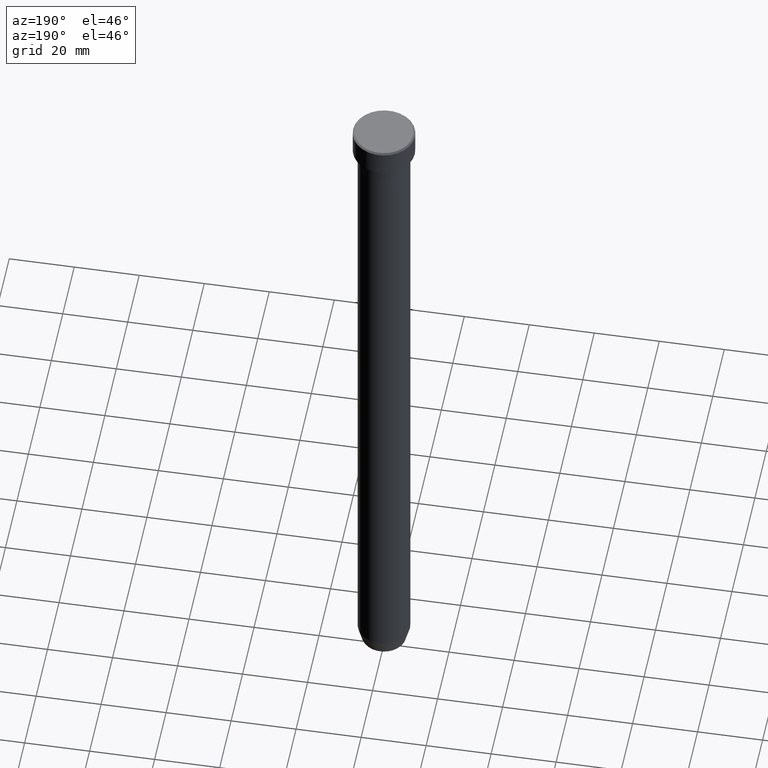
[diagram: clean part render]
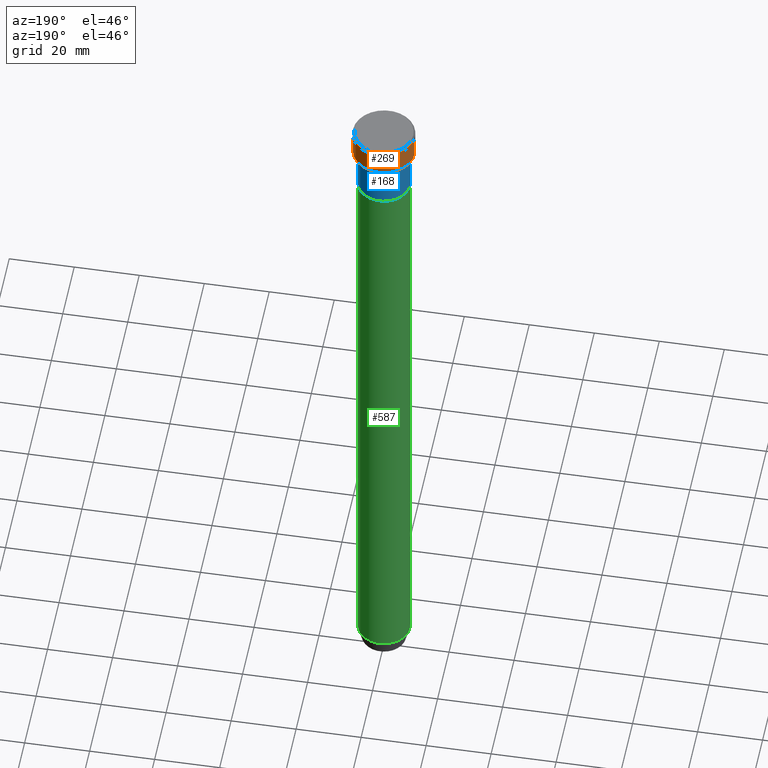
[diagram: same view with three faces highlighted in distinct colors, each labeled with its STEP entity id]
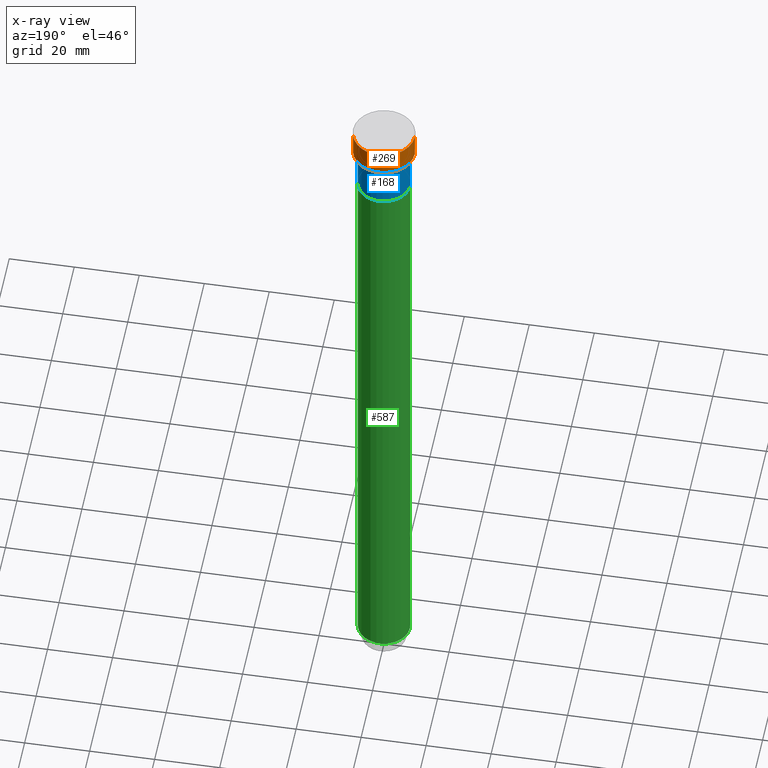
[diagram: x-ray of the same camera — body ghosted, the three highlighted faces saturated]
A machine part, auxiliary view with three faces highlighted in distinct colors.
The next image is the same camera in x-ray (body ghosted, the three faces saturated) — at least one of them is partly hidden behind the body in this view.
Their STEP definitions:

[orange] entity #269 — the highlighted cylindrical surface (edge-blend (fillet) strip) has radius 9.5 mm, axis along (-0, -0, 1).
#5 = DIRECTION ( 'NONE',  ( -0.000000000000000000, -0.000000000000000000, 1.000000000000000000 ) ) ;
#13 = CARTESIAN_POINT ( 'NONE',  ( -9.500000000000000000, 1.163414459189985485E-15, -0.4999999999999968914 ) ) ;
#16 = LINE ( 'NONE', #152, #151 ) ;
#41 = CIRCLE ( 'NONE', #413, 9.500000000000000000 ) ;
#46 = CARTESIAN_POINT ( 'NONE',  ( 9.500000000000000000, 0.000000000000000000, -8.000000000000000000 ) ) ;
#51 = DIRECTION ( 'NONE',  ( 1.000000000000000000, 0.000000000000000000, 0.000000000000000000 ) ) ;
#59 = CARTESIAN_POINT ( 'NONE',  ( 0.000000000000000000, 0.000000000000000000, -8.000000000000000000 ) ) ;
#71 = AXIS2_PLACEMENT_3D ( 'NONE', #380, #5, #51 ) ;
#78 = VERTEX_POINT ( 'NONE', #89 ) ;
#89 = CARTESIAN_POINT ( 'NONE',  ( 9.500000000000000000, 0.000000000000000000, -0.4999999999999968914 ) ) ;
#115 = CARTESIAN_POINT ( 'NONE',  ( -9.500000000000000000, 1.163414459189985485E-15, -8.000000000000000000 ) ) ;
#129 = ORIENTED_EDGE ( 'NONE', *, *, #198, .T. ) ;
#151 = VECTOR ( 'NONE', #520, 1000.000000000000000 ) ;
#152 = CARTESIAN_POINT ( 'NONE',  ( 9.500000000000000000, 0.000000000000000000, 0.000000000000000000 ) ) ;
#163 = ORIENTED_EDGE ( 'NONE', *, *, #521, .T. ) ;
#198 = EDGE_CURVE ( 'NONE', #543, #78, #41, .T. ) ;
#235 = CARTESIAN_POINT ( 'NONE',  ( 0.000000000000000000, 0.000000000000000000, -0.4999999999999968914 ) ) ;
#253 = LINE ( 'NONE', #289, #555 ) ;
#260 = DIRECTION ( 'NONE',  ( -0.000000000000000000, -0.000000000000000000, 1.000000000000000000 ) ) ;
#269 = ADVANCED_FACE ( 'NONE', ( #286 ), #376, .T. ) ;
#273 = DIRECTION ( 'NONE',  ( 0.000000000000000000, 0.000000000000000000, -1.000000000000000000 ) ) ;
#286 = FACE_OUTER_BOUND ( 'NONE', #309, .T. ) ;
#289 = CARTESIAN_POINT ( 'NONE',  ( -9.500000000000000000, 1.163414459189985485E-15, 0.000000000000000000 ) ) ;
#294 = AXIS2_PLACEMENT_3D ( 'NONE', #59, #260, #306 ) ;
#306 = DIRECTION ( 'NONE',  ( 1.000000000000000000, 0.000000000000000000, 0.000000000000000000 ) ) ;
#307 = EDGE_CURVE ( 'NONE', #582, #543, #253, .T. ) ;
#309 = EDGE_LOOP ( 'NONE', ( #163, #575, #129, #385 ) ) ;
#315 = VERTEX_POINT ( 'NONE', #46 ) ;
#376 = CYLINDRICAL_SURFACE ( 'NONE', #71, 9.500000000000000000 ) ;
#380 = CARTESIAN_POINT ( 'NONE',  ( 0.000000000000000000, 0.000000000000000000, 0.000000000000000000 ) ) ;
#385 = ORIENTED_EDGE ( 'NONE', *, *, #506, .F. ) ;
#413 = AXIS2_PLACEMENT_3D ( 'NONE', #235, #273, #455 ) ;
#455 = DIRECTION ( 'NONE',  ( 1.000000000000000000, 0.000000000000000000, 0.000000000000000000 ) ) ;
#506 = EDGE_CURVE ( 'NONE', #315, #78, #16, .T. ) ;
#517 = DIRECTION ( 'NONE',  ( -0.000000000000000000, -0.000000000000000000, 1.000000000000000000 ) ) ;
#520 = DIRECTION ( 'NONE',  ( -0.000000000000000000, -0.000000000000000000, 1.000000000000000000 ) ) ;
#521 = EDGE_CURVE ( 'NONE', #315, #582, #563, .T. ) ;
#543 = VERTEX_POINT ( 'NONE', #13 ) ;
#555 = VECTOR ( 'NONE', #517, 1000.000000000000000 ) ;
#563 = CIRCLE ( 'NONE', #294, 9.500000000000000000 ) ;
#575 = ORIENTED_EDGE ( 'NONE', *, *, #307, .T. ) ;
#582 = VERTEX_POINT ( 'NONE', #115 ) ;

[blue] entity #168 — the highlighted cylindrical surface (edge-blend (fillet) strip) has radius 8 mm, axis along (-0, -0, 1).
#12 = ORIENTED_EDGE ( 'NONE', *, *, #205, .T. ) ;
#33 = CARTESIAN_POINT ( 'NONE',  ( 0.000000000000000000, 0.000000000000000000, 0.000000000000000000 ) ) ;
#87 = CARTESIAN_POINT ( 'NONE',  ( 8.000000000000000000, 0.000000000000000000, 0.000000000000000000 ) ) ;
#106 = CARTESIAN_POINT ( 'NONE',  ( 8.000000000000000000, 0.000000000000000000, -22.00000000000000000 ) ) ;
#113 = EDGE_CURVE ( 'NONE', #535, #435, #211, .T. ) ;
#127 = FACE_OUTER_BOUND ( 'NONE', #318, .T. ) ;
#131 = CARTESIAN_POINT ( 'NONE',  ( 0.000000000000000000, 0.000000000000000000, -22.00000000000000000 ) ) ;
#139 = DIRECTION ( 'NONE',  ( -0.000000000000000000, -0.000000000000000000, 1.000000000000000000 ) ) ;
#159 = EDGE_CURVE ( 'NONE', #435, #359, #194, .T. ) ;
#168 = ADVANCED_FACE ( 'NONE', ( #127 ), #407, .T. ) ;
#194 = CIRCLE ( 'NONE', #287, 8.000000000000000000 ) ;
#205 = EDGE_CURVE ( 'NONE', #535, #278, #275, .T. ) ;
#211 = LINE ( 'NONE', #87, #319 ) ;
#222 = CARTESIAN_POINT ( 'NONE',  ( 0.000000000000000000, 0.000000000000000000, -9.000000000000001776 ) ) ;
#241 = EDGE_CURVE ( 'NONE', #278, #359, #424, .T. ) ;
#252 = DIRECTION ( 'NONE',  ( -0.000000000000000000, -0.000000000000000000, 1.000000000000000000 ) ) ;
#275 = CIRCLE ( 'NONE', #427, 8.000000000000000000 ) ;
#278 = VERTEX_POINT ( 'NONE', #560 ) ;
#284 = DIRECTION ( 'NONE',  ( 1.000000000000000000, 0.000000000000000000, 0.000000000000000000 ) ) ;
#287 = AXIS2_PLACEMENT_3D ( 'NONE', #222, #402, #446 ) ;
#318 = EDGE_LOOP ( 'NONE', ( #12, #591, #471, #594 ) ) ;
#319 = VECTOR ( 'NONE', #512, 1000.000000000000000 ) ;
#339 = CARTESIAN_POINT ( 'NONE',  ( -8.000000000000000000, 9.797174393178825657E-16, 0.000000000000000000 ) ) ;
#359 = VERTEX_POINT ( 'NONE', #379 ) ;
#379 = CARTESIAN_POINT ( 'NONE',  ( -8.000000000000000000, 9.797174393178825657E-16, -9.000000000000001776 ) ) ;
#402 = DIRECTION ( 'NONE',  ( -0.000000000000000000, -0.000000000000000000, 1.000000000000000000 ) ) ;
#407 = CYLINDRICAL_SURFACE ( 'NONE', #438, 8.000000000000000000 ) ;
#424 = LINE ( 'NONE', #339, #585 ) ;
#427 = AXIS2_PLACEMENT_3D ( 'NONE', #131, #139, #284 ) ;
#435 = VERTEX_POINT ( 'NONE', #470 ) ;
#438 = AXIS2_PLACEMENT_3D ( 'NONE', #33, #495, #596 ) ;
#446 = DIRECTION ( 'NONE',  ( 1.000000000000000000, 0.000000000000000000, 0.000000000000000000 ) ) ;
#470 = CARTESIAN_POINT ( 'NONE',  ( 8.000000000000000000, 0.000000000000000000, -9.000000000000001776 ) ) ;
#471 = ORIENTED_EDGE ( 'NONE', *, *, #159, .F. ) ;
#495 = DIRECTION ( 'NONE',  ( -0.000000000000000000, -0.000000000000000000, 1.000000000000000000 ) ) ;
#512 = DIRECTION ( 'NONE',  ( -0.000000000000000000, -0.000000000000000000, 1.000000000000000000 ) ) ;
#535 = VERTEX_POINT ( 'NONE', #106 ) ;
#560 = CARTESIAN_POINT ( 'NONE',  ( -8.000000000000000000, 9.797174393178825657E-16, -22.00000000000000000 ) ) ;
#585 = VECTOR ( 'NONE', #252, 1000.000000000000000 ) ;
#591 = ORIENTED_EDGE ( 'NONE', *, *, #241, .T. ) ;
#594 = ORIENTED_EDGE ( 'NONE', *, *, #113, .F. ) ;
#596 = DIRECTION ( 'NONE',  ( 1.000000000000000000, 0.000000000000000000, 0.000000000000000000 ) ) ;

[green] entity #587 — the highlighted cylindrical surface (edge-blend (fillet) strip) has radius 8 mm, axis along (-0, -0, 1).
#10 = CARTESIAN_POINT ( 'NONE',  ( 8.000000000000000000, 0.000000000000000000, -22.00000000000000000 ) ) ;
#32 = AXIS2_PLACEMENT_3D ( 'NONE', #588, #540, #122 ) ;
#42 = AXIS2_PLACEMENT_3D ( 'NONE', #418, #148, #421 ) ;
#44 = DIRECTION ( 'NONE',  ( 1.000000000000000000, 0.000000000000000000, 0.000000000000000000 ) ) ;
#45 = EDGE_CURVE ( 'NONE', #161, #467, #55, .T. ) ;
#52 = DIRECTION ( 'NONE',  ( -0.000000000000000000, -0.000000000000000000, 1.000000000000000000 ) ) ;
#55 = LINE ( 'NONE', #430, #552 ) ;
#65 = EDGE_CURVE ( 'NONE', #157, #233, #239, .T. ) ;
#79 = CYLINDRICAL_SURFACE ( 'NONE', #32, 8.000000000000000000 ) ;
#119 = ORIENTED_EDGE ( 'NONE', *, *, #375, .F. ) ;
#122 = DIRECTION ( 'NONE',  ( 1.000000000000000000, 0.000000000000000000, 0.000000000000000000 ) ) ;
#148 = DIRECTION ( 'NONE',  ( -0.000000000000000000, -0.000000000000000000, 1.000000000000000000 ) ) ;
#149 = CARTESIAN_POINT ( 'NONE',  ( 0.000000000000000000, 0.000000000000000000, -22.00000000000000000 ) ) ;
#157 = VERTEX_POINT ( 'NONE', #597 ) ;
#161 = VERTEX_POINT ( 'NONE', #371 ) ;
#212 = ORIENTED_EDGE ( 'NONE', *, *, #45, .F. ) ;
#233 = VERTEX_POINT ( 'NONE', #276 ) ;
#239 = LINE ( 'NONE', #328, #494 ) ;
#258 = CIRCLE ( 'NONE', #476, 8.000000000000000000 ) ;
#276 = CARTESIAN_POINT ( 'NONE',  ( -8.000000000000000000, 9.797174393178825657E-16, -22.00000000000000000 ) ) ;
#328 = CARTESIAN_POINT ( 'NONE',  ( -8.000000000000000000, 9.797174393178825657E-16, 0.000000000000000000 ) ) ;
#338 = DIRECTION ( 'NONE',  ( -0.000000000000000000, -0.000000000000000000, 1.000000000000000000 ) ) ;
#354 = EDGE_CURVE ( 'NONE', #161, #157, #393, .T. ) ;
#371 = CARTESIAN_POINT ( 'NONE',  ( 8.000000000000000000, 0.000000000000000000, -214.9999999999999716 ) ) ;
#375 = EDGE_CURVE ( 'NONE', #467, #233, #258, .T. ) ;
#393 = CIRCLE ( 'NONE', #42, 8.000000000000000000 ) ;
#406 = EDGE_LOOP ( 'NONE', ( #481, #436, #119, #212 ) ) ;
#408 = DIRECTION ( 'NONE',  ( -0.000000000000000000, -0.000000000000000000, 1.000000000000000000 ) ) ;
#418 = CARTESIAN_POINT ( 'NONE',  ( 0.000000000000000000, 0.000000000000000000, -214.9999999999999716 ) ) ;
#421 = DIRECTION ( 'NONE',  ( 1.000000000000000000, 0.000000000000000000, 0.000000000000000000 ) ) ;
#430 = CARTESIAN_POINT ( 'NONE',  ( 8.000000000000000000, 0.000000000000000000, 0.000000000000000000 ) ) ;
#436 = ORIENTED_EDGE ( 'NONE', *, *, #65, .T. ) ;
#467 = VERTEX_POINT ( 'NONE', #10 ) ;
#476 = AXIS2_PLACEMENT_3D ( 'NONE', #149, #338, #44 ) ;
#479 = FACE_OUTER_BOUND ( 'NONE', #406, .T. ) ;
#481 = ORIENTED_EDGE ( 'NONE', *, *, #354, .T. ) ;
#494 = VECTOR ( 'NONE', #408, 1000.000000000000000 ) ;
#540 = DIRECTION ( 'NONE',  ( -0.000000000000000000, -0.000000000000000000, 1.000000000000000000 ) ) ;
#552 = VECTOR ( 'NONE', #52, 1000.000000000000000 ) ;
#587 = ADVANCED_FACE ( 'NONE', ( #479 ), #79, .T. ) ;
#588 = CARTESIAN_POINT ( 'NONE',  ( 0.000000000000000000, 0.000000000000000000, 0.000000000000000000 ) ) ;
#597 = CARTESIAN_POINT ( 'NONE',  ( -8.000000000000000000, 9.797174393178825657E-16, -214.9999999999999716 ) ) ;